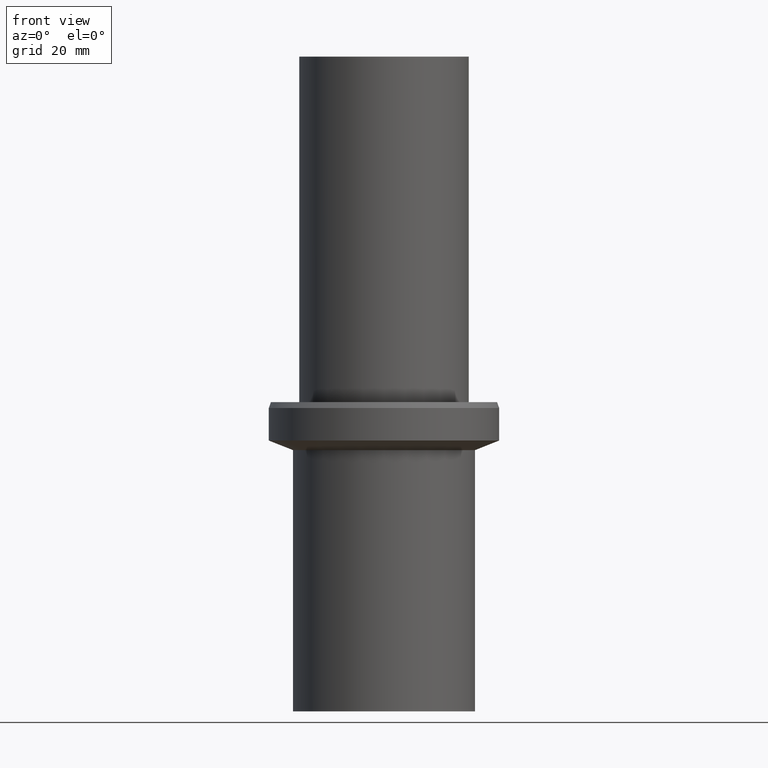
[diagram: clean part render]
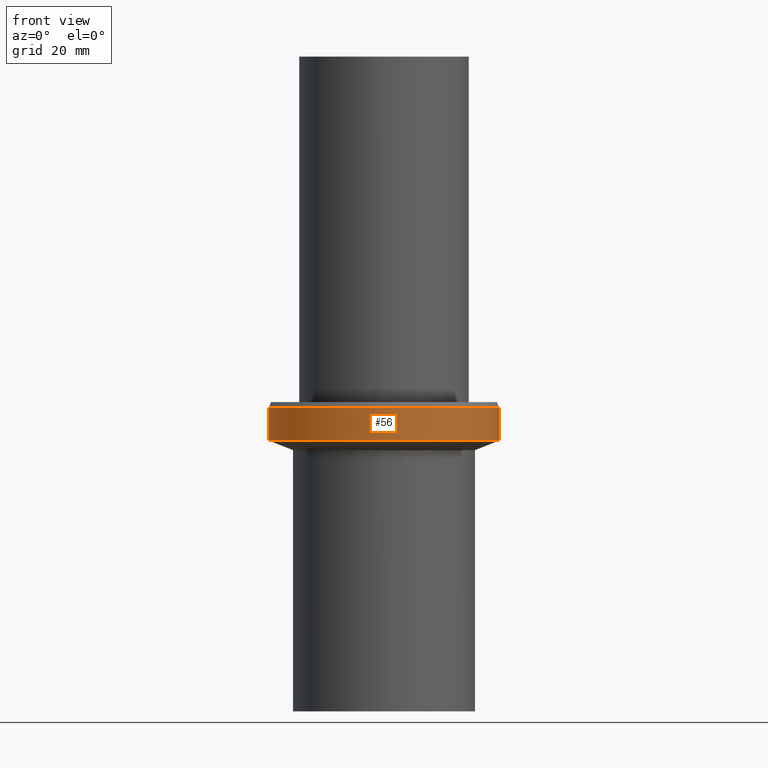
[diagram: same view with one face highlighted and labeled with its STEP entity id]
A machine part, front view. The second image highlights one B-rep face of the part: STEP entity #56.
In plain terms, the highlighted cylindrical surface (bore or boss wall) has radius 27 mm, axis along (0, 0, -1).
Its self-contained STEP definition (entity closure, byte-faithful):
#46=EDGE_CURVE('Unnamed[1]',#104,#104,#105,.T.);
#48=EDGE_CURVE('Unnamed[1]',#107,#107,#108,.T.);
#56=ADVANCED_FACE('Unnamed[1]',(#119,#120),#121,.T.);
#104=VERTEX_POINT('',#174);
#105=CIRCLE('',#175,26.9999999999945);
#107=VERTEX_POINT('',#178);
#108=CIRCLE('',#179,26.9999999999945);
#119=FACE_BOUND('',#193,.T.);
#120=FACE_BOUND('',#194,.T.);
#121=CYLINDRICAL_SURFACE('',#195,26.9999999999945);
#174=CARTESIAN_POINT('',(-4.35522741122329E-015,26.9999999999945,71.126261290285));
#175=AXIS2_PLACEMENT_3D('',#248,#249,#250);
#178=CARTESIAN_POINT('',(-3.88825358729318E-015,26.9999999999945,63.5000000000055));
#179=AXIS2_PLACEMENT_3D('',#251,#252,#253);
#193=EDGE_LOOP('',(#264));
#194=EDGE_LOOP('',(#265));
#195=AXIS2_PLACEMENT_3D('',#266,#267,#268);
#248=CARTESIAN_POINT('',(-4.35522741122329E-015,-8.71045482244658E-015,71.126261290285));
#249=DIRECTION('',(6.12323399573677E-017,1.22464679914748E-016,-1.0));
#250=DIRECTION('',(-1.23259516440775E-032,1.0,1.22464679914748E-016));
#251=CARTESIAN_POINT('',(-3.88825358729318E-015,-7.77650717458636E-015,63.5000000000055));
#252=DIRECTION('',(6.12323399573677E-017,1.22464679914748E-016,-1.0));
#253=DIRECTION('',(-1.23259516440775E-032,1.0,1.22464679914748E-016));
#264=ORIENTED_EDGE('',*,*,#48,.F.);
#265=ORIENTED_EDGE('',*,*,#46,.T.);
#266=CARTESIAN_POINT('',(-4.12174049925824E-015,-8.24348099851647E-015,67.3131306451452));
#267=DIRECTION('',(6.12323399573677E-017,1.22464679914748E-016,-1.0));
#268=DIRECTION('',(-1.23259516440775E-032,1.0,1.22464679914748E-016));